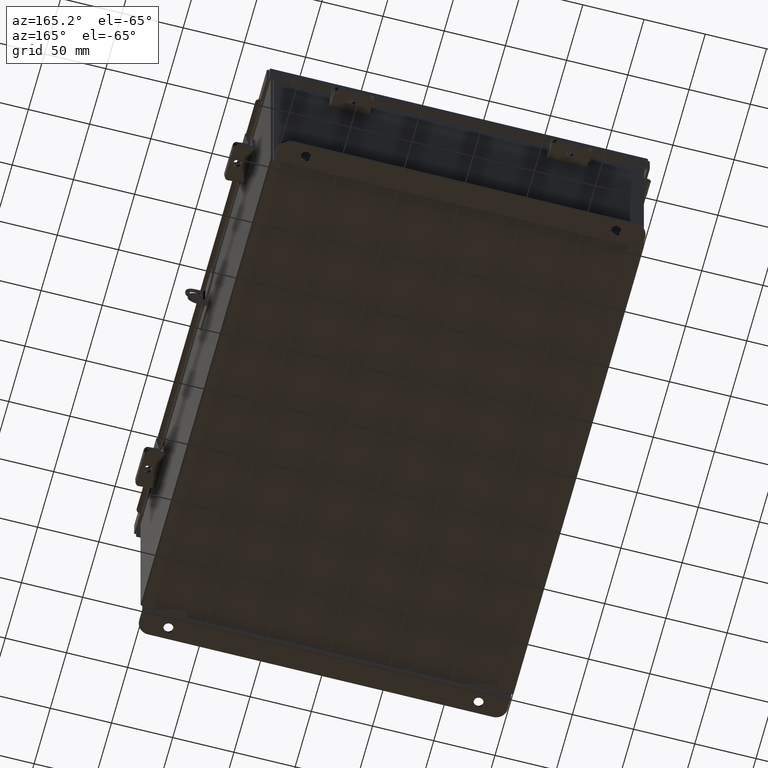
[diagram: clean part render]
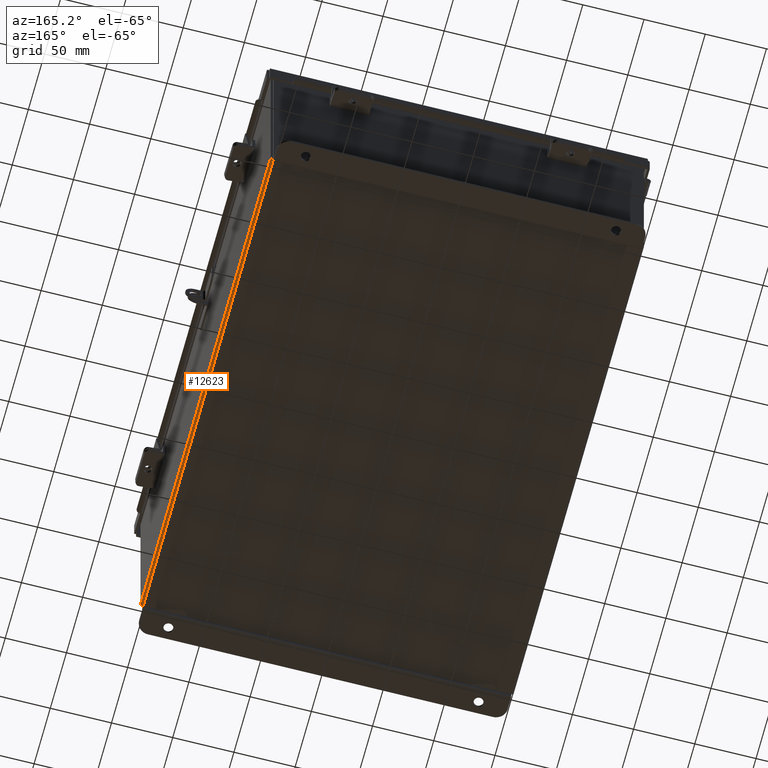
[diagram: same view with one face highlighted and labeled with its STEP entity id]
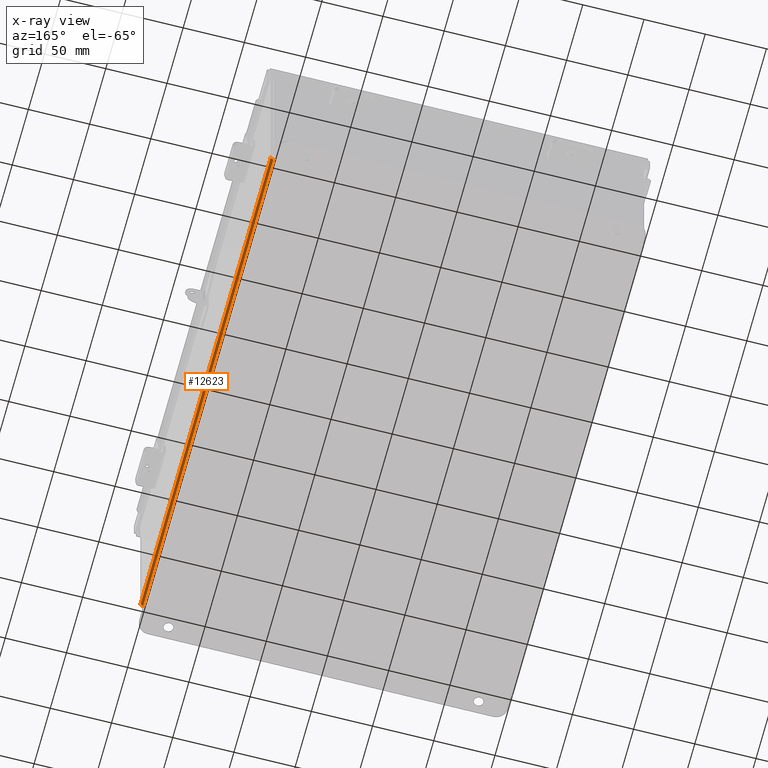
[diagram: x-ray of the same camera — body ghosted, the highlighted face saturated]
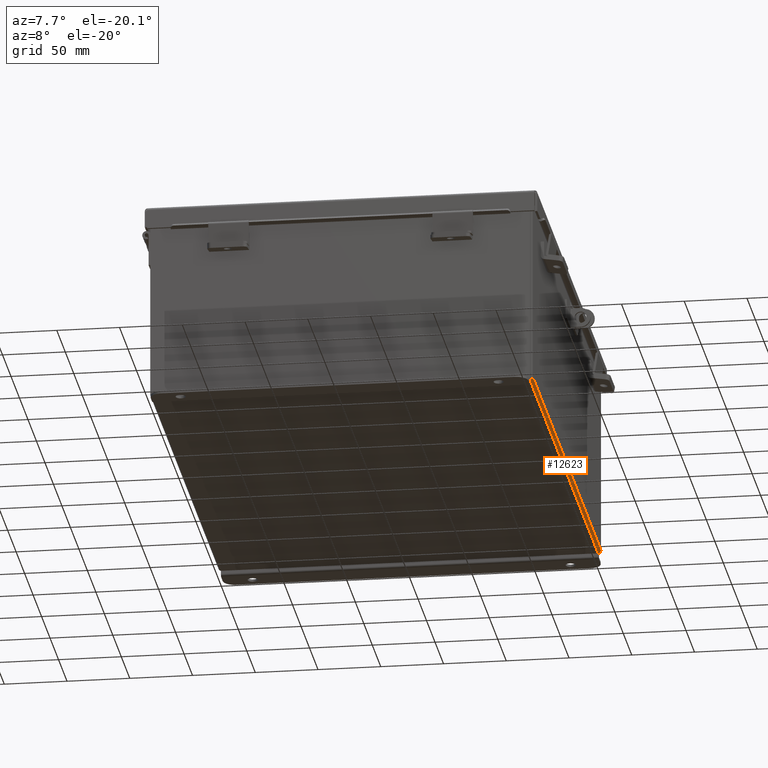
[diagram: same view with one face highlighted and labeled with its STEP entity id]
A machine part, auxiliary view. The second image highlights one B-rep face of the part: STEP entity #12623.
The next image is the same camera in x-ray: the body ghosted, the highlighted face saturated — about 0% of this face is hidden behind the body in this view.
A second angle (auxiliary view) of the same face is appended — the face is thin or edge-on in the first view.
In plain terms, the highlighted cylindrical surface (edge-blend (fillet) strip) has radius 2.2276 mm, axis along (0, 1, 0).
Its self-contained STEP definition (entity closure, byte-faithful):
#536 = CYLINDRICAL_SURFACE ( 'NONE', #13727, 0.08770000000000026400 ) ;
#584 = CARTESIAN_POINT ( 'NONE',  ( 5.912300000000000100, -7.925300000000000000, -0.07470000000000000300 ) ) ;
#1894 = EDGE_CURVE ( 'NONE', #20105, #15986, #12318, .T. ) ;
#1922 = CARTESIAN_POINT ( 'NONE',  ( 5.912300000000000100, 7.925299999999997300, 0.01300000000000015000 ) ) ;
#2939 = CARTESIAN_POINT ( 'NONE',  ( 5.912300000000000100, 7.925299999999997300, -0.07469999999999994700 ) ) ;
#3514 = DIRECTION ( 'NONE',  ( 0.0000000000000000000, 0.0000000000000000000, 1.000000000000000000 ) ) ;
#3544 = CIRCLE ( 'NONE', #7360, 0.08770000000000009700 ) ;
#4083 = VECTOR ( 'NONE', #11334, 39.37007874015748100 ) ;
#5145 = LINE ( 'NONE', #18860, #8743 ) ;
#6263 = CARTESIAN_POINT ( 'NONE',  ( 5.912300000000000100, -7.925300000000000000, 0.01300000000000015000 ) ) ;
#6284 = EDGE_CURVE ( 'NONE', #19544, #15986, #3544, .T. ) ;
#6633 = CIRCLE ( 'NONE', #15536, 0.08770000000000009700 ) ;
#7360 = AXIS2_PLACEMENT_3D ( 'NONE', #6263, #17123, #7808 ) ;
#7808 = DIRECTION ( 'NONE',  ( 0.0000000000000000000, 0.0000000000000000000, 1.000000000000000000 ) ) ;
#7962 = DIRECTION ( 'NONE',  ( -0.0000000000000000000, -1.000000000000000000, -0.0000000000000000000 ) ) ;
#8099 = CARTESIAN_POINT ( 'NONE',  ( 6.000000000000000900, 7.925299999999998200, 0.01299999999999984300 ) ) ;
#8743 = VECTOR ( 'NONE', #7962, 39.37007874015748100 ) ;
#9416 = CARTESIAN_POINT ( 'NONE',  ( 6.000000000000000900, -7.925300000000000000, 0.01299999999999984300 ) ) ;
#10292 = EDGE_LOOP ( 'NONE', ( #13053, #17592, #16578, #19337 ) ) ;
#11333 = VERTEX_POINT ( 'NONE', #2939 ) ;
#11334 = DIRECTION ( 'NONE',  ( -0.0000000000000000000, -1.000000000000000000, -0.0000000000000000000 ) ) ;
#11408 = CARTESIAN_POINT ( 'NONE',  ( 5.912300000000000100, 7.925300000000000000, 0.01300000000000015000 ) ) ;
#12318 = LINE ( 'NONE', #17129, #4083 ) ;
#12538 = EDGE_CURVE ( 'NONE', #20105, #11333, #6633, .T. ) ;
#12623 = ADVANCED_FACE ( 'NONE', ( #12945 ), #536, .T. ) ;
#12799 = DIRECTION ( 'NONE',  ( 0.0000000000000000000, 1.000000000000000000, 0.0000000000000000000 ) ) ;
#12921 = DIRECTION ( 'NONE',  ( 1.000000000000000000, 0.0000000000000000000, -3.553037762569317100E-015 ) ) ;
#12945 = FACE_OUTER_BOUND ( 'NONE', #10292, .T. ) ;
#13053 = ORIENTED_EDGE ( 'NONE', *, *, #13652, .F. ) ;
#13652 = EDGE_CURVE ( 'NONE', #11333, #19544, #5145, .T. ) ;
#13727 = AXIS2_PLACEMENT_3D ( 'NONE', #11408, #14482, #12921 ) ;
#14482 = DIRECTION ( 'NONE',  ( 0.0000000000000000000, 1.000000000000000000, 0.0000000000000000000 ) ) ;
#15536 = AXIS2_PLACEMENT_3D ( 'NONE', #1922, #12799, #3514 ) ;
#15986 = VERTEX_POINT ( 'NONE', #9416 ) ;
#16578 = ORIENTED_EDGE ( 'NONE', *, *, #1894, .T. ) ;
#17123 = DIRECTION ( 'NONE',  ( -0.0000000000000000000, -1.000000000000000000, -0.0000000000000000000 ) ) ;
#17129 = CARTESIAN_POINT ( 'NONE',  ( 6.000000000000000900, -7.925300000000000000, 0.01299999999999984300 ) ) ;
#17592 = ORIENTED_EDGE ( 'NONE', *, *, #12538, .F. ) ;
#18860 = CARTESIAN_POINT ( 'NONE',  ( 5.912300000000000100, 7.925300000000000000, -0.07469999999999994700 ) ) ;
#19337 = ORIENTED_EDGE ( 'NONE', *, *, #6284, .F. ) ;
#19544 = VERTEX_POINT ( 'NONE', #584 ) ;
#20105 = VERTEX_POINT ( 'NONE', #8099 ) ;